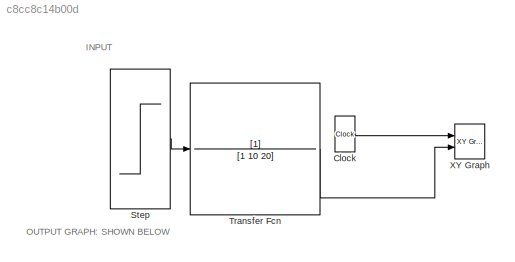
MODEL slx_c8cc8c14b00d
KIND model
CONFIG AbsTol = auto
CONFIG FixedStep = auto
CONFIG MaxStep = auto
CONFIG MinStep = auto
CONFIG RelTol = 1e-3
CONFIG SampleTimeConstraint = Unconstrained
CONFIG Solver = ode45
CONFIG SolverMode = Auto
CONFIG SolverName = ode45
CONFIG StartTime = 0.0
CONFIG StopTime = 10
BLOCK [Clock] Clock
BLOCK [Step] Step
  SampleTime = 0
  Time = 0.06
BLOCK [TransferFcn] Transfer Fcn
  Denominator = [1 10 20]
BLOCK [Reference] XY Graph  REF=simulink/Sinks/XY Graph
  Ports = [2]
  SourceBlock = simulink/Sinks/XY Graph
  SourceType = XY scope.
  st = -1
  xmax = 10
  xmin = 0
  ymax = 1
  ymin = -1
ANNOTATION (root): INPUT
ANNOTATION (root): OUTPUT GRAPH: SHOWN BELOW
LINE Clock:1 -> XY Graph:1
LINE Step:1 -> Transfer Fcn:1
LINE Transfer Fcn:1 -> XY Graph:2
